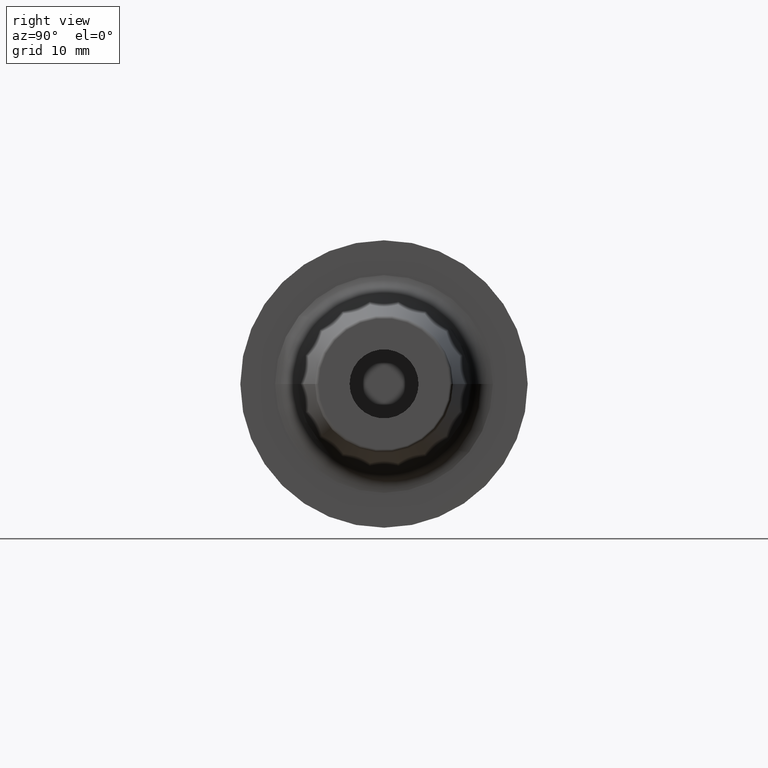
[diagram: clean part render]
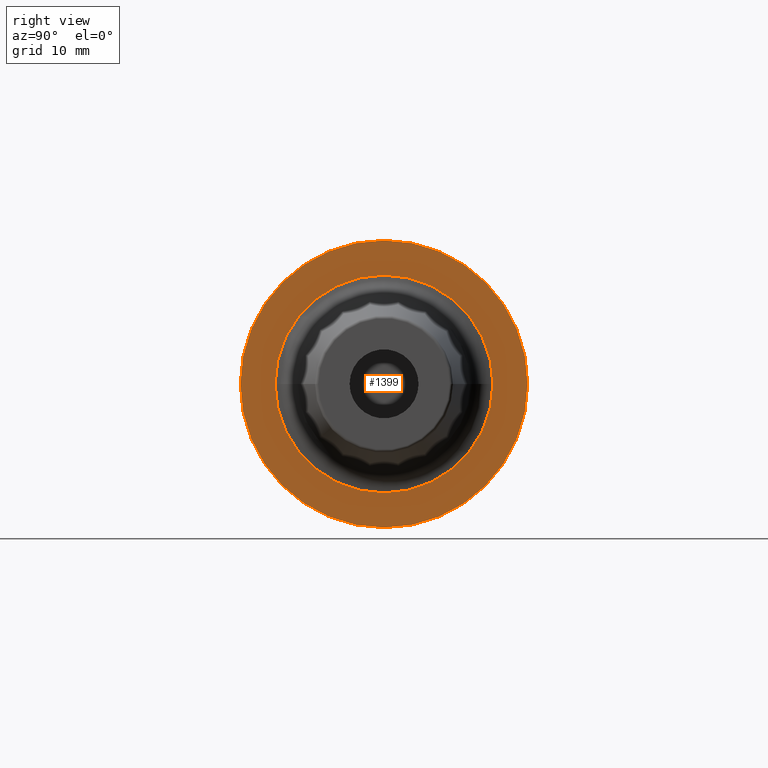
[diagram: same view with one face highlighted and labeled with its STEP entity id]
A machine part, right view. The second image highlights one B-rep face of the part: STEP entity #1399.
In plain terms, the highlighted planar face has unit normal (1, 0, 0).
Its self-contained STEP definition (entity closure, byte-faithful):
#319=CARTESIAN_POINT('',(9.95E0,0.E0,0.E0));
#320=DIRECTION('',(1.E0,0.E0,0.E0));
#321=DIRECTION('',(0.E0,1.E0,0.E0));
#322=AXIS2_PLACEMENT_3D('',#319,#320,#321);
#442=CARTESIAN_POINT('',(9.95E0,0.E0,0.E0));
#443=DIRECTION('',(-1.E0,0.E0,0.E0));
#444=DIRECTION('',(0.E0,1.E0,0.E0));
#445=AXIS2_PLACEMENT_3D('',#442,#443,#444);
#464=CARTESIAN_POINT('',(9.95E0,0.E0,0.E0));
#465=DIRECTION('',(1.E0,0.E0,0.E0));
#466=DIRECTION('',(0.E0,-1.E0,0.E0));
#467=AXIS2_PLACEMENT_3D('',#464,#465,#466);
#469=CARTESIAN_POINT('',(9.95E0,0.E0,0.E0));
#470=DIRECTION('',(1.E0,0.E0,0.E0));
#471=DIRECTION('',(0.E0,1.E0,0.E0));
#472=AXIS2_PLACEMENT_3D('',#469,#470,#471);
#632=CARTESIAN_POINT('',(9.95E0,1.25E1,0.E0));
#633=CARTESIAN_POINT('',(9.95E0,-1.25E1,0.E0));
#634=VERTEX_POINT('',#632);
#635=VERTEX_POINT('',#633);
#668=CARTESIAN_POINT('',(9.95E0,-9.472782900885E0,0.E0));
#669=CARTESIAN_POINT('',(9.95E0,9.472782900885E0,0.E0));
#670=VERTEX_POINT('',#668);
#671=VERTEX_POINT('',#669);
#1384=CARTESIAN_POINT('',(9.95E0,0.E0,0.E0));
#1385=DIRECTION('',(1.E0,0.E0,0.E0));
#1386=DIRECTION('',(0.E0,-1.E0,0.E0));
#1387=AXIS2_PLACEMENT_3D('',#1384,#1385,#1386);
#1388=PLANE('',#1387);
#1389=ORIENTED_EDGE('',*,*,#1366,.T.);
#1390=ORIENTED_EDGE('',*,*,#1165,.F.);
#1391=EDGE_LOOP('',(#1389,#1390));
#1392=FACE_OUTER_BOUND('',#1391,.F.);
#1394=ORIENTED_EDGE('',*,*,#1393,.T.);
#1396=ORIENTED_EDGE('',*,*,#1395,.T.);
#1397=EDGE_LOOP('',(#1394,#1396));
#1398=FACE_BOUND('',#1397,.F.);
#1399=ADVANCED_FACE('',(#1392,#1398),#1388,.T.);
#323=CIRCLE('',#322,1.25E1);
#446=CIRCLE('',#445,1.25E1);
#468=CIRCLE('',#467,9.472782900885E0);
#473=CIRCLE('',#472,9.472782900885E0);
#1165=EDGE_CURVE('',#634,#635,#323,.T.);
#1366=EDGE_CURVE('',#634,#635,#446,.T.);
#1393=EDGE_CURVE('',#670,#671,#468,.T.);
#1395=EDGE_CURVE('',#671,#670,#473,.T.);